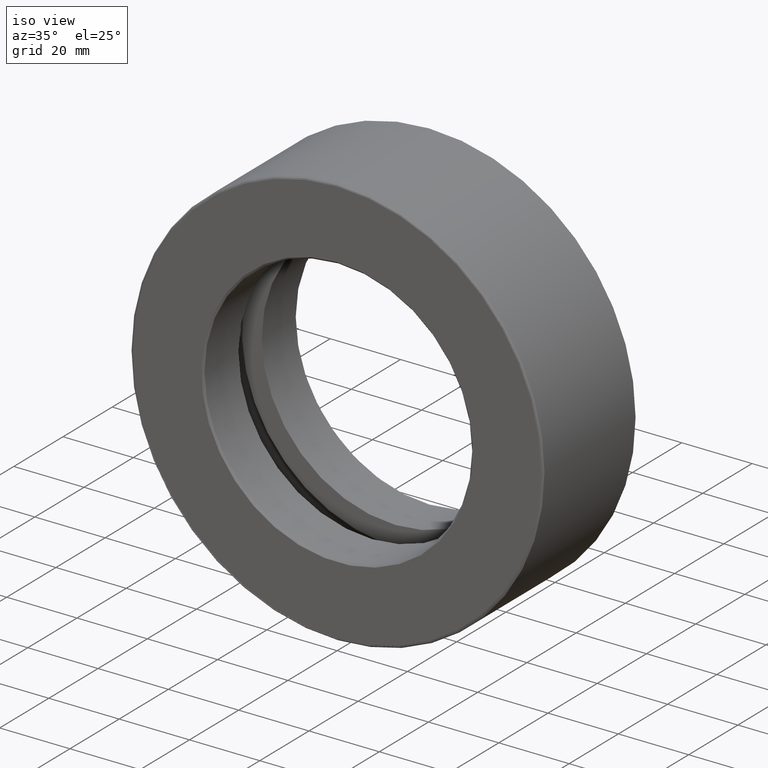
[diagram: clean part render]
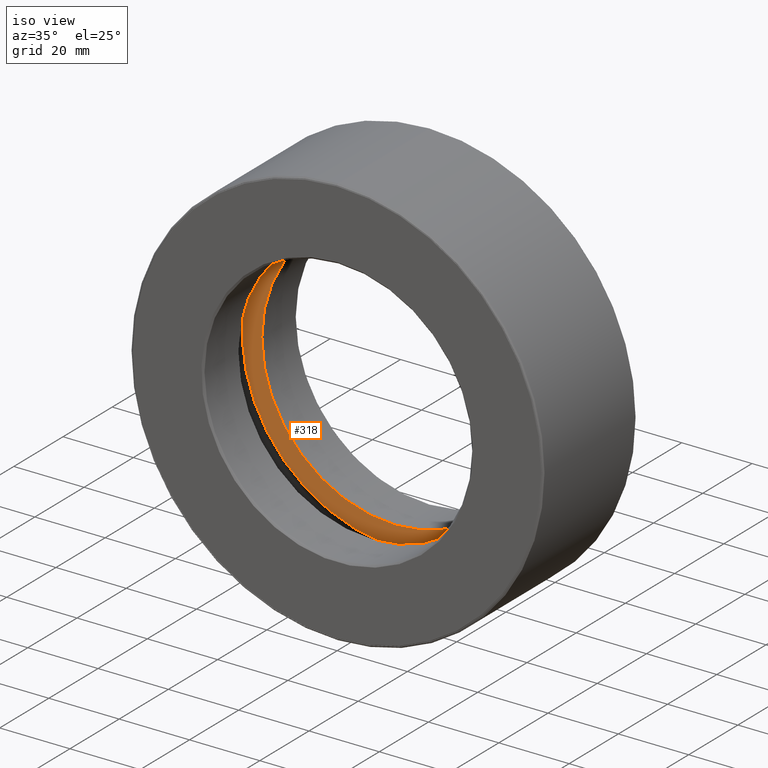
[diagram: same view with one face highlighted and labeled with its STEP entity id]
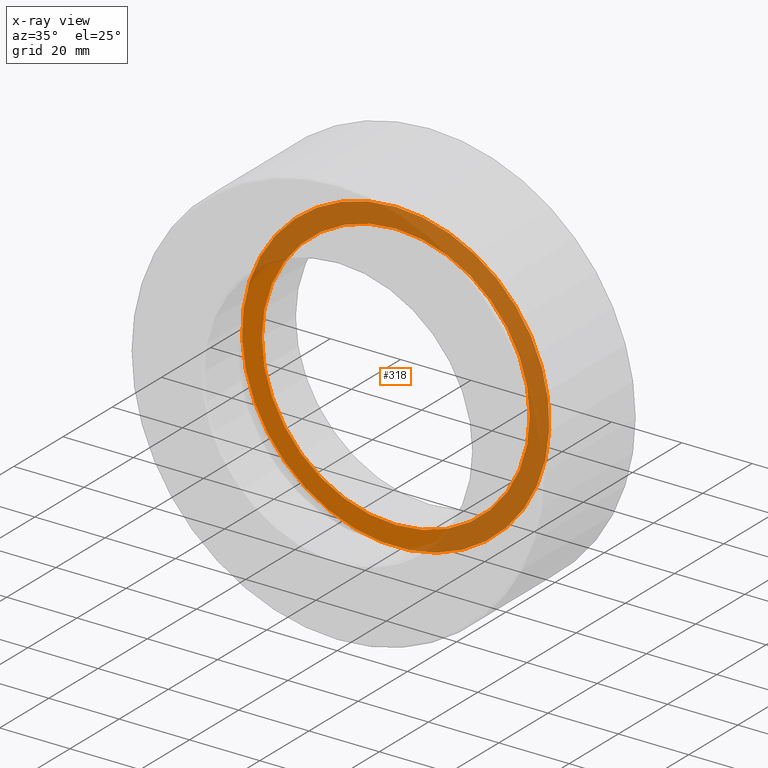
[diagram: x-ray of the same camera — body ghosted, the highlighted face saturated]
A machine part, iso view. The second image highlights one B-rep face of the part: STEP entity #318.
The next image is the same camera in x-ray: the body ghosted, the highlighted face saturated — about 64% of this face is hidden behind the body in this view.
In plain terms, the highlighted planar face has unit normal (0, -1, 0).
Its self-contained STEP definition (entity closure, byte-faithful):
#19 = AXIS2_PLACEMENT_3D ( 'NONE', #312, #182, #395 ) ;
#26 = EDGE_LOOP ( 'NONE', ( #235 ) ) ;
#49 = VERTEX_POINT ( 'NONE', #77 ) ;
#77 = CARTESIAN_POINT ( 'NONE',  ( 0.0000000000000000000, 0.9374999999999998900, 1.720999999999999900 ) ) ;
#125 = CIRCLE ( 'NONE', #211, 1.500000000000000200 ) ;
#149 = ORIENTED_EDGE ( 'NONE', *, *, #397, .F. ) ;
#181 = FACE_BOUND ( 'NONE', #26, .T. ) ;
#182 = DIRECTION ( 'NONE',  ( -0.0000000000000000000, 1.000000000000000000, -0.0000000000000000000 ) ) ;
#194 = CIRCLE ( 'NONE', #19, 1.720999999999999900 ) ;
#211 = AXIS2_PLACEMENT_3D ( 'NONE', #465, #606, #364 ) ;
#232 = EDGE_LOOP ( 'NONE', ( #149 ) ) ;
#235 = ORIENTED_EDGE ( 'NONE', *, *, #525, .T. ) ;
#312 = CARTESIAN_POINT ( 'NONE',  ( 0.0000000000000000000, 0.9374999999999998900, 0.0000000000000000000 ) ) ;
#318 = ADVANCED_FACE ( 'NONE', ( #181, #471 ), #538, .T. ) ;
#358 = VERTEX_POINT ( 'NONE', #446 ) ;
#364 = DIRECTION ( 'NONE',  ( 0.0000000000000000000, 0.0000000000000000000, 1.000000000000000000 ) ) ;
#374 = AXIS2_PLACEMENT_3D ( 'NONE', #587, #431, #482 ) ;
#395 = DIRECTION ( 'NONE',  ( 0.0000000000000000000, 0.0000000000000000000, 1.000000000000000000 ) ) ;
#397 = EDGE_CURVE ( 'NONE', #49, #49, #194, .T. ) ;
#431 = DIRECTION ( 'NONE',  ( 0.0000000000000000000, -1.000000000000000000, 0.0000000000000000000 ) ) ;
#446 = CARTESIAN_POINT ( 'NONE',  ( 0.0000000000000000000, 0.9374999999999998900, 1.500000000000000200 ) ) ;
#465 = CARTESIAN_POINT ( 'NONE',  ( 0.0000000000000000000, 0.9374999999999998900, 0.0000000000000000000 ) ) ;
#471 = FACE_OUTER_BOUND ( 'NONE', #232, .T. ) ;
#482 = DIRECTION ( 'NONE',  ( 0.0000000000000000000, -0.0000000000000000000, -1.000000000000000000 ) ) ;
#525 = EDGE_CURVE ( 'NONE', #358, #358, #125, .T. ) ;
#538 = PLANE ( 'NONE',  #374 ) ;
#587 = CARTESIAN_POINT ( 'NONE',  ( 0.0000000000000000000, 0.9374999999999998900, 0.0000000000000000000 ) ) ;
#606 = DIRECTION ( 'NONE',  ( -0.0000000000000000000, 1.000000000000000000, -0.0000000000000000000 ) ) ;